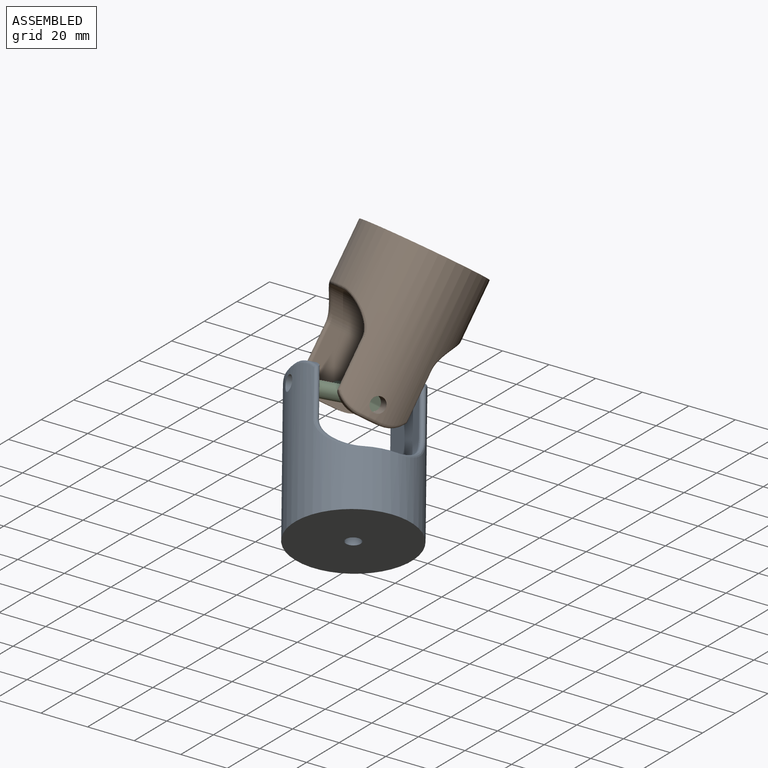
[diagram: assembled view]
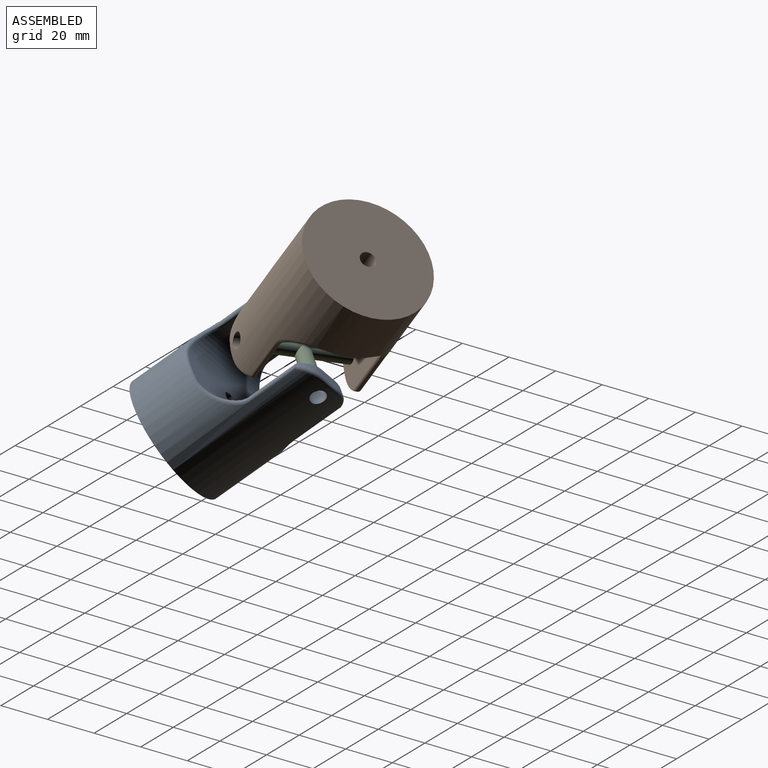
[diagram: assembled view, second angle]
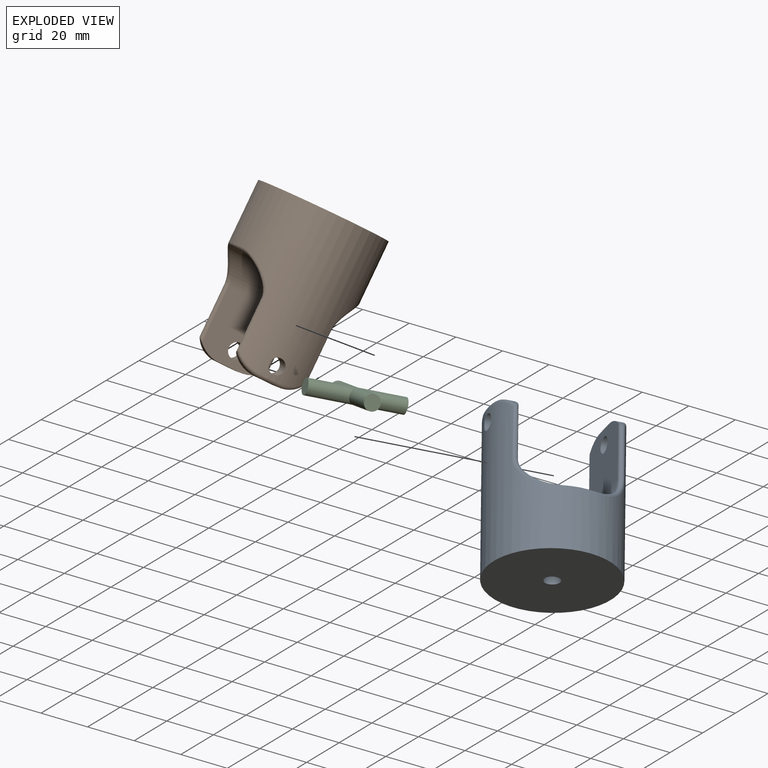
[diagram: exploded view]
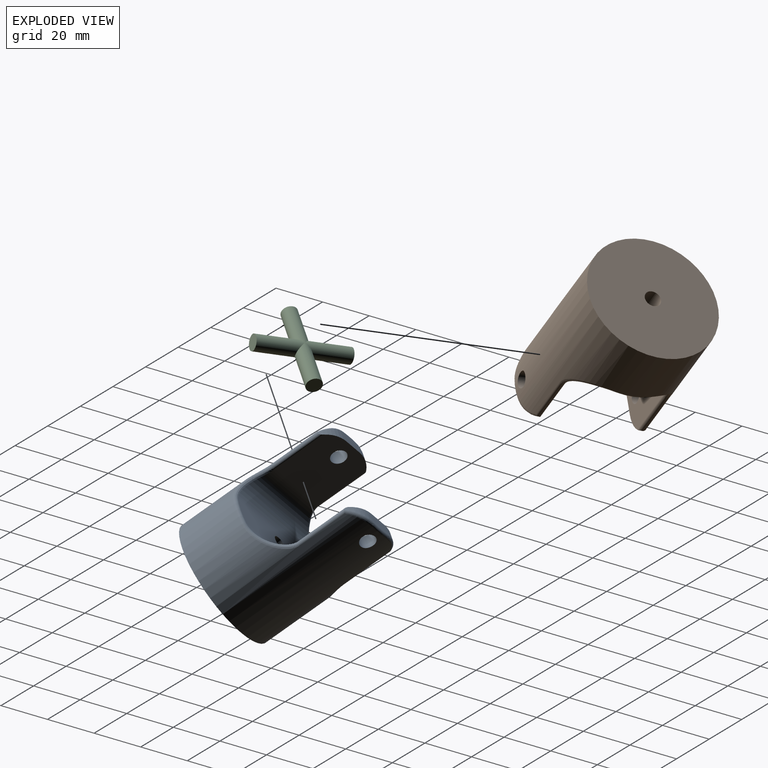
[diagram: exploded view, second angle]
ASSEMBLY  parts=3 mates=2
PART A: 32 faces, bbox 51.5x55x63.5 mm
  f0: cylinder r=25.4mm len=62.23mm, axis (0,0,-1), area 6168.5mm2, adj f6,f7,f8,f16,f17,f18,f19,f20
  f1: plane 26.03x25.4mm, normal (1,0,0), area 609.1mm2, adj f2,f8,f11,f12,f15,f16,f24
  f2: plane 8.2x5.08mm, normal (0,0,1), area 40.7mm2, adj f1,f11,f12,f20
  f3: plane 26.03x25.4mm, normal (-1,0,0), area 609.1mm2, adj f4,f7,f9,f10,f14,f23,f31
  f4: plane 8.2x5.08mm, normal (0,0,1), area 40.7mm2, adj f3,f9,f10,f27
  f5: plane 48.26x12.7mm, normal (0,0,1), area 574.1mm2, adj f13,f14,f15,f19,f28
  f6: plane 50.8x50.8mm, normal (0,0,-1), area 1995.2mm2, adj f0,f13
  f7: cylinder r=3.17mm len=6.35mm, axis (-1,0,0), area 122.7mm2, adj f0,f3
  f8: cylinder r=3.17mm len=6.35mm, axis (-1,0,0), area 126.7mm2, adj f0,f1
  f9: cylinder r=12.7mm len=10.17mm, axis (-1,0,0), area 33.4mm2, adj f3,f4,f29,f31
  f10: cylinder r=12.7mm len=10.17mm, axis (-1,0,0), area 33.4mm2, adj f3,f4,f23,f25
  f11: cylinder r=12.7mm len=10.17mm, axis (-1,0,0), area 33.4mm2, adj f1,f2,f22,f24
  f12: cylinder r=12.7mm len=10.17mm, axis (-1,0,0), area 33.4mm2, adj f1,f2,f16,f18
  f13: cylinder r=3.17mm len=25.4mm, axis (0,0,-1), area 506.7mm2, adj f5,f6
  f14: cylinder r=12.7mm len=46.56mm, axis (0,1,0), area 724mm2, adj f3,f5,f21,f30
  f15: cylinder r=12.7mm len=46.56mm, axis (0,-1,0), area 724mm2, adj f1,f5,f17,f26
  f16: cylinder r=1.27mm len=21.75mm, axis (0,0,-1), area 67.3mm2, adj f0,f1,f12,f17,f18
  f17: bspline ~15.85x15.66mm, area 61.4mm2, adj f0,f15,f16,f19
  f18: bspline ~12.82x6.67mm, area 21mm2, adj f0,f12,f16,f20
  f19: torus R=24.13mm, axis (0,0,1), area 26.5mm2, adj f0,f5,f17,f21
  f20: torus R=24.13mm, axis (0,0,1), area 17mm2, adj f0,f2,f18,f22
  f21: bspline ~17.57x15.85mm, area 61.4mm2, adj f0,f14,f19,f23
  f22: bspline ~12.82x6.67mm, area 21mm2, adj f0,f11,f20,f24
  f23: cylinder r=1.27mm len=21.75mm, axis (0,0,-1), area 67.3mm2, adj f0,f3,f10,f21,f25
  f24: cylinder r=1.27mm len=21.75mm, axis (0,0,-1), area 67.3mm2, adj f0,f1,f11,f22,f26
  f25: bspline ~12.82x6.67mm, area 21mm2, adj f0,f10,f23,f27
  f26: bspline ~17.57x15.85mm, area 61.4mm2, adj f0,f15,f24,f28
  f27: torus R=24.13mm, axis (0,0,1), area 17mm2, adj f0,f4,f25,f29
  f28: torus R=24.13mm, axis (0,0,1), area 26.5mm2, adj f0,f5,f26,f30
  f29: bspline ~12.82x6.67mm, area 21mm2, adj f0,f9,f27,f31
  f30: bspline ~17.57x14.45mm, area 61.4mm2, adj f0,f14,f28,f31
  f31: cylinder r=1.27mm len=21.75mm, axis (0,0,-1), area 67.3mm2, adj f0,f3,f9,f29,f30
PART B: same geometry as A
PART C: 8 faces, bbox 38.1x6.4x38.1 mm
  f0: cylinder r=3.17mm len=19.05mm, axis (0,0,-1), area 339.7mm2, adj f1,f3,f6
  f1: plane 6.35x6.35mm, normal (0,0,1), area 31.7mm2, adj f0
  f2: plane 6.35x6.35mm, normal (-1,0,0), area 31.7mm2, adj f3
  f3: cylinder r=3.17mm len=19.05mm, axis (-1,0,0), area 339.7mm2, adj f0,f2,f5
  f4: plane 6.35x6.35mm, normal (0,0,-1), area 31.7mm2, adj f5
  f5: cylinder r=3.17mm len=19.05mm, axis (0,0,-1), area 339.7mm2, adj f3,f4,f6
  f6: cylinder r=3.17mm len=19.05mm, axis (-1,0,0), area 339.7mm2, adj f0,f5,f7
  f7: plane 6.35x6.35mm, normal (1,0,0), area 31.7mm2, adj f6
PLACE A rot(axis=(0.05,-0.48,-0.88),128.9deg) t=(-75.59,-20.52,-4.16)mm
PLACE B rot(axis=(0.94,-0.34,0.05),144.3deg) t=(-94.15,49.63,77.42)mm
PLACE C rot(axis=(-0.92,0.19,-0.34),118.2deg) t=(-100.79,16.55,31.3)mm
MATE revolute C.f3 <-> B.f7  axis (0.78,-0.56,0.29) through (-85.92,5.96,36.75)mm
MATE revolute C.f0 <-> A.f7  axis (-0.62,-0.72,0.31) through (-112.68,2.87,37.15)mm
